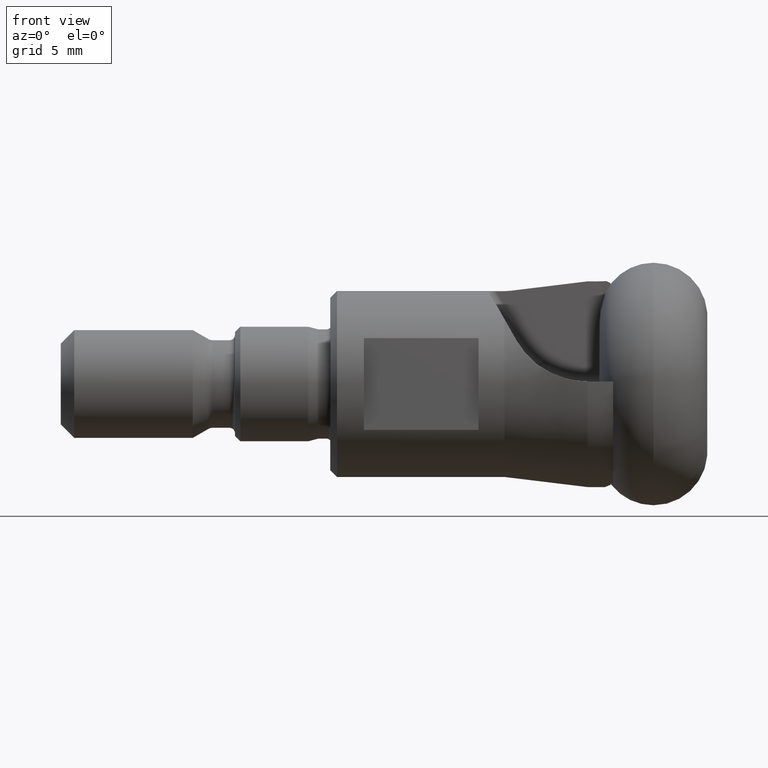
[diagram: clean part render]
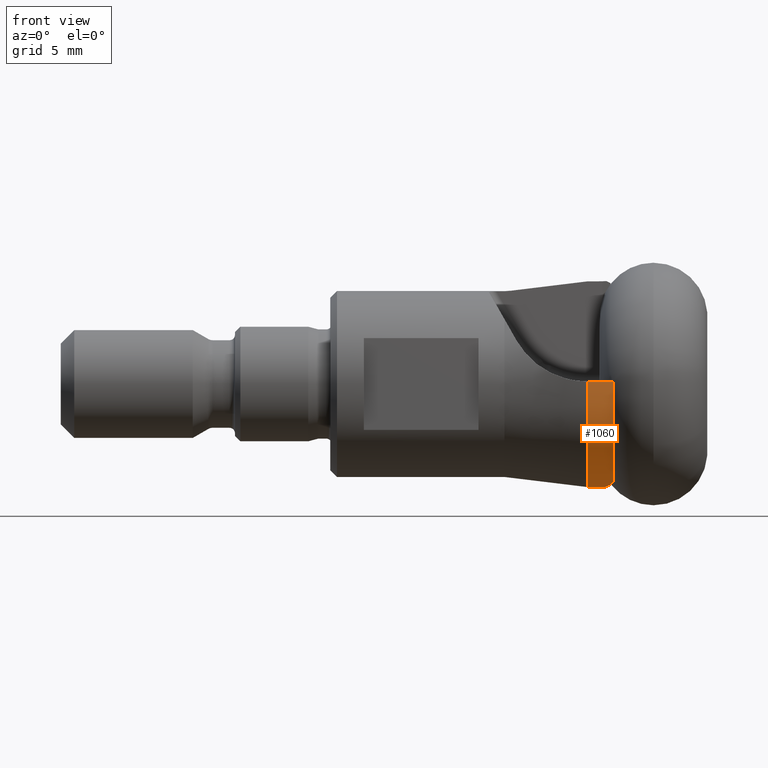
[diagram: same view with one face highlighted and labeled with its STEP entity id]
A machine part, front view. The second image highlights one B-rep face of the part: STEP entity #1060.
In plain terms, the highlighted cylindrical surface (partial cylindrical patch) has radius 7.65 mm, axis along (1, -0, -0).
Its self-contained STEP definition (entity closure, byte-faithful):
#25 = EDGE_CURVE ( 'NONE', #927, #3048, #2611, .T. ) ;
#32 = CARTESIAN_POINT ( 'NONE',  ( -6.716437532604567600, 0.0000000000000000000, -7.650000000000000400 ) ) ;
#56 = CARTESIAN_POINT ( 'NONE',  ( 0.0000000000000000000, 0.0000000000000000000, 0.0000000000000000000 ) ) ;
#167 = DIRECTION ( 'NONE',  ( 1.000000000000000000, -0.0000000000000000000, -0.0000000000000000000 ) ) ;
#204 = EDGE_CURVE ( 'NONE', #3155, #2997, #1819, .T. ) ;
#209 = CIRCLE ( 'NONE', #689, 7.650000000000000400 ) ;
#290 = DIRECTION ( 'NONE',  ( 1.000000000000000000, -0.0000000000000000000, -0.0000000000000000000 ) ) ;
#337 = CARTESIAN_POINT ( 'NONE',  ( -6.716437532604567600, 0.0000000000000000000, -7.650000000000000400 ) ) ;
#339 = EDGE_CURVE ( 'NONE', #927, #2970, #1986, .T. ) ;
#341 = ORIENTED_EDGE ( 'NONE', *, *, #1684, .F. ) ;
#368 = AXIS2_PLACEMENT_3D ( 'NONE', #2723, #2758, #2772 ) ;
#385 = EDGE_CURVE ( 'NONE', #2997, #506, #209, .T. ) ;
#410 = DIRECTION ( 'NONE',  ( 1.000000000000000000, -0.0000000000000000000, -0.0000000000000000000 ) ) ;
#429 = ORIENTED_EDGE ( 'NONE', *, *, #385, .T. ) ;
#506 = VERTEX_POINT ( 'NONE', #1048 ) ;
#608 = EDGE_CURVE ( 'NONE', #3048, #3155, #1530, .T. ) ;
#635 = FACE_OUTER_BOUND ( 'NONE', #2589, .T. ) ;
#687 = ORIENTED_EDGE ( 'NONE', *, *, #339, .F. ) ;
#689 = AXIS2_PLACEMENT_3D ( 'NONE', #3031, #3023, #1733 ) ;
#781 = ORIENTED_EDGE ( 'NONE', *, *, #1024, .T. ) ;
#826 = CARTESIAN_POINT ( 'NONE',  ( 0.0000000000000000000, -2.180000000000000200, -7.332809829799216100 ) ) ;
#927 = VERTEX_POINT ( 'NONE', #2533 ) ;
#1024 = EDGE_CURVE ( 'NONE', #506, #2854, #1804, .T. ) ;
#1048 = CARTESIAN_POINT ( 'NONE',  ( -6.298000000000001800, -2.180000000000000200, -7.332809829799216100 ) ) ;
#1060 = ADVANCED_FACE ( 'NONE', ( #635 ), #3003, .T. ) ;
#1209 = CARTESIAN_POINT ( 'NONE',  ( -8.000000000000000000, 0.0000000000000000000, 0.0000000000000000000 ) ) ;
#1339 = DIRECTION ( 'NONE',  ( 1.000000000000000000, -0.0000000000000000000, -0.0000000000000000000 ) ) ;
#1465 = AXIS2_PLACEMENT_3D ( 'NONE', #1209, #410, #2959 ) ;
#1530 = LINE ( 'NONE', #1838, #2893 ) ;
#1684 = EDGE_CURVE ( 'NONE', #2970, #2854, #1957, .T. ) ;
#1721 = VECTOR ( 'NONE', #167, 1000.000000000000000 ) ;
#1733 = DIRECTION ( 'NONE',  ( -1.133806193448893400E-016, 0.0000000000000000000, -1.000000000000000000 ) ) ;
#1804 = LINE ( 'NONE', #826, #2756 ) ;
#1819 =( BOUNDED_CURVE ( )  B_SPLINE_CURVE ( 3, ( #337, #2097, #1867, #3150 ),
 .UNSPECIFIED., .F., .F. ) 
 B_SPLINE_CURVE_WITH_KNOTS ( ( 4, 4 ),
 ( 4.712388980384689700, 4.920422222310699900 ),
 .UNSPECIFIED. ) 
 CURVE ( )  GEOMETRIC_REPRESENTATION_ITEM ( )  RATIONAL_B_SPLINE_CURVE ( ( 1.000000000000000000, 0.9963967647003021400, 0.9963967647003021400, 1.000000000000000000 ) ) 
 REPRESENTATION_ITEM ( '' )  );
#1838 = CARTESIAN_POINT ( 'NONE',  ( 0.0000000000000000000, 0.0000000000000000000, -7.650000000000000400 ) ) ;
#1851 = CARTESIAN_POINT ( 'NONE',  ( -6.298000000000001800, -1.580000000000000300, -7.485058450005587000 ) ) ;
#1867 = CARTESIAN_POINT ( 'NONE',  ( -6.435709687942910800, -1.060014840935848500, -7.594820659186562600 ) ) ;
#1887 = CARTESIAN_POINT ( 'NONE',  ( -6.103920652495360400, -7.647640158898685300, 0.1900000000000540700 ) ) ;
#1943 = CARTESIAN_POINT ( 'NONE',  ( 2.608181363493989500E-017, -7.647640158898689800, 0.1900000000000532100 ) ) ;
#1956 = ORIENTED_EDGE ( 'NONE', *, *, #25, .T. ) ;
#1957 = CIRCLE ( 'NONE', #368, 7.650000000000000400 ) ;
#1986 = LINE ( 'NONE', #1943, #1721 ) ;
#2097 = CARTESIAN_POINT ( 'NONE',  ( -6.575693259223180000, -0.5314436077433397600, -7.650000000000000400 ) ) ;
#2269 = AXIS2_PLACEMENT_3D ( 'NONE', #56, #3103, #2362 ) ;
#2335 = ORIENTED_EDGE ( 'NONE', *, *, #204, .T. ) ;
#2362 = DIRECTION ( 'NONE',  ( 0.0000000000000000000, 0.0000000000000000000, -1.000000000000000000 ) ) ;
#2533 = CARTESIAN_POINT ( 'NONE',  ( -8.000000000000000000, -7.647640158898689800, 0.1900000000000532100 ) ) ;
#2589 = EDGE_LOOP ( 'NONE', ( #1956, #2804, #2335, #429, #781, #341, #687 ) ) ;
#2611 = CIRCLE ( 'NONE', #1465, 7.650000000000000400 ) ;
#2660 = CARTESIAN_POINT ( 'NONE',  ( -8.000000000000000000, 0.0000000000000000000, -7.650000000000000400 ) ) ;
#2723 = CARTESIAN_POINT ( 'NONE',  ( -6.103920652495355100, 0.0000000000000000000, 0.0000000000000000000 ) ) ;
#2756 = VECTOR ( 'NONE', #290, 1000.000000000000000 ) ;
#2758 = DIRECTION ( 'NONE',  ( 1.000000000000000000, -0.0000000000000000000, -0.0000000000000000000 ) ) ;
#2772 = DIRECTION ( 'NONE',  ( 0.0000000000000000000, 0.0000000000000000000, -1.000000000000000000 ) ) ;
#2804 = ORIENTED_EDGE ( 'NONE', *, *, #608, .T. ) ;
#2854 = VERTEX_POINT ( 'NONE', #3287 ) ;
#2893 = VECTOR ( 'NONE', #1339, 1000.000000000000000 ) ;
#2959 = DIRECTION ( 'NONE',  ( 0.0000000000000000000, 0.0000000000000000000, -1.000000000000000000 ) ) ;
#2970 = VERTEX_POINT ( 'NONE', #1887 ) ;
#2997 = VERTEX_POINT ( 'NONE', #1851 ) ;
#3003 = CYLINDRICAL_SURFACE ( 'NONE', #2269, 7.650000000000000400 ) ;
#3023 = DIRECTION ( 'NONE',  ( -1.000000000000000000, -0.0000000000000000000, 1.062840953578329600E-016 ) ) ;
#3031 = CARTESIAN_POINT ( 'NONE',  ( -6.298000000000000900, 0.0000000000000000000, 0.0000000000000000000 ) ) ;
#3048 = VERTEX_POINT ( 'NONE', #2660 ) ;
#3103 = DIRECTION ( 'NONE',  ( 1.000000000000000000, -0.0000000000000000000, -0.0000000000000000000 ) ) ;
#3150 = CARTESIAN_POINT ( 'NONE',  ( -6.298000000000001800, -1.580000000000000300, -7.485058450005587000 ) ) ;
#3155 = VERTEX_POINT ( 'NONE', #32 ) ;
#3287 = CARTESIAN_POINT ( 'NONE',  ( -6.103920652495355100, -2.180000000000000200, -7.332809829799216100 ) ) ;